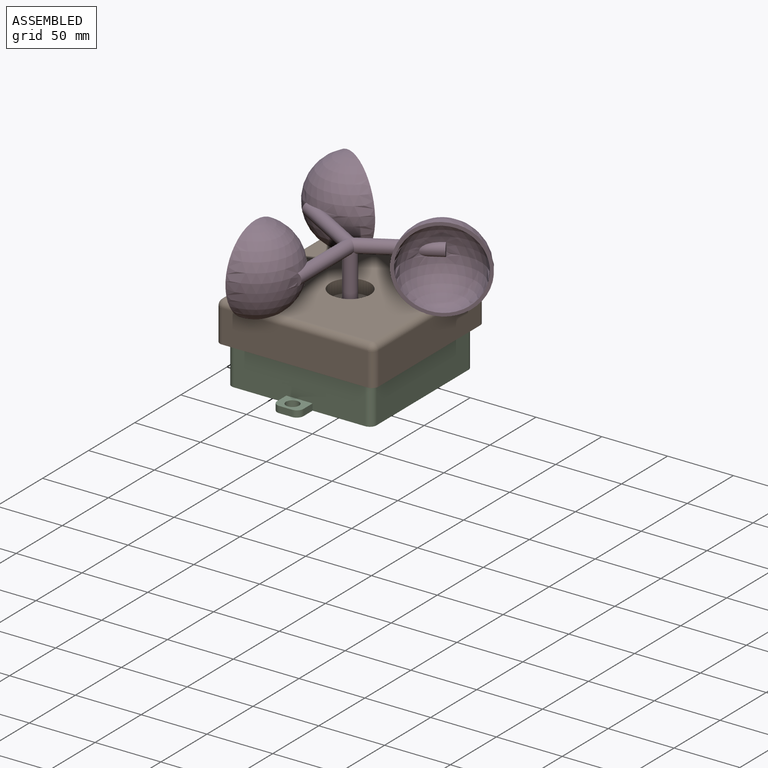
[diagram: assembled view]
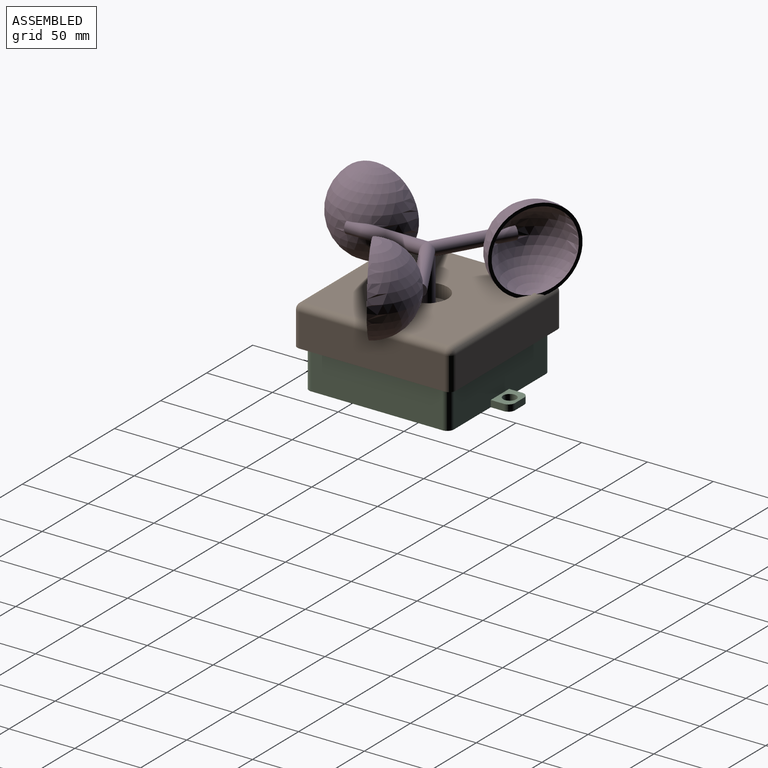
[diagram: assembled view, second angle]
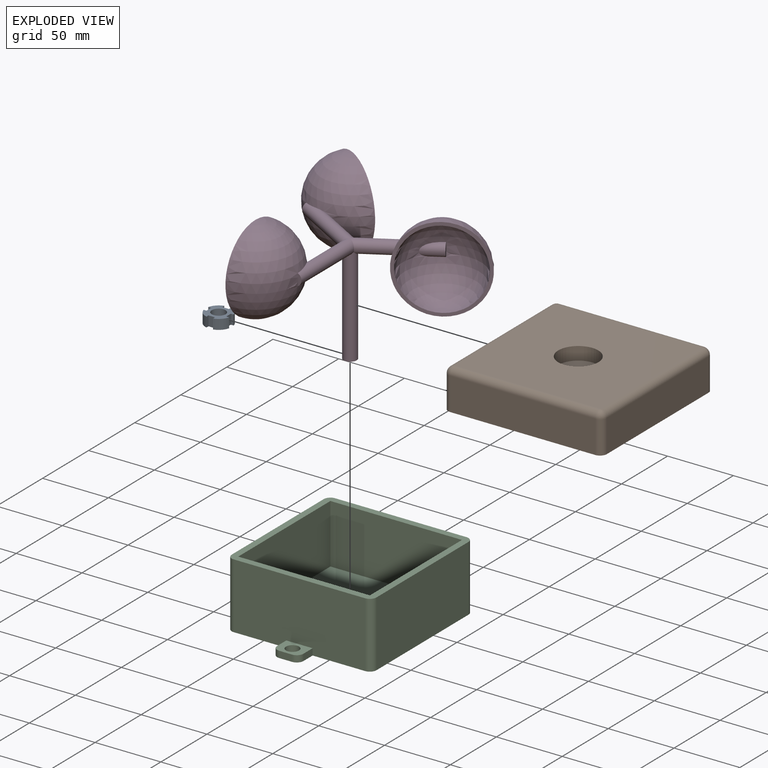
[diagram: exploded view]
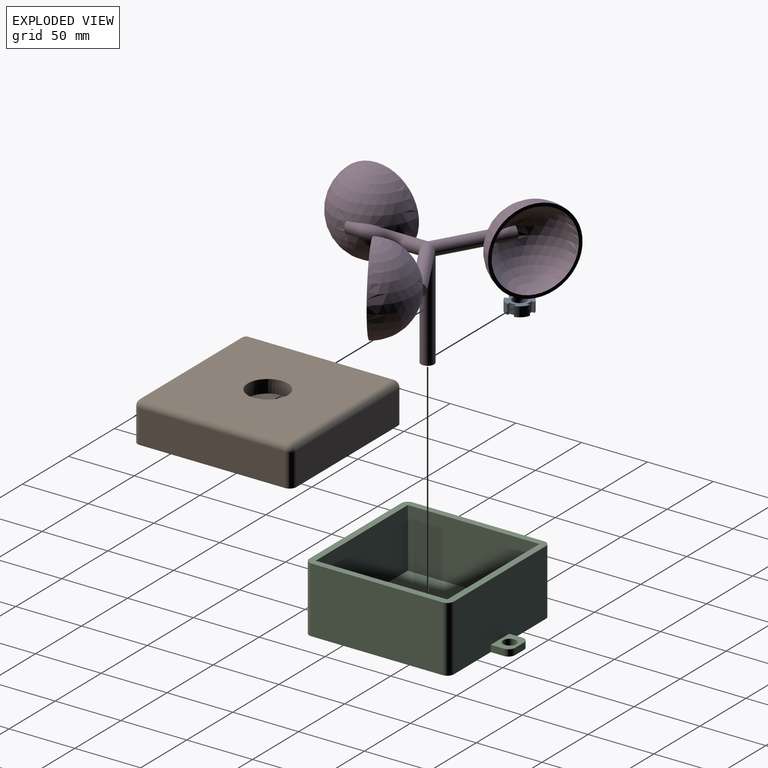
[diagram: exploded view, second angle]
ASSEMBLY  parts=4 mates=2
PART A: 20 faces, bbox 19.4x19.4x7.5 mm
  f0: cylinder r=10mm len=7.5mm, axis (0,0,-1), area 79.9mm2, adj f4,f5,f10,f17
  f1: cylinder r=10mm len=7.5mm, axis (0,0,-1), area 79.9mm2, adj f4,f5,f14,f19
  f2: cylinder r=10mm len=7.5mm, axis (0,0,-1), area 79.9mm2, adj f4,f5,f11,f16
  f3: cylinder r=10mm len=7.5mm, axis (0,0,-1), area 79.9mm2, adj f4,f5,f8,f13
  f4: plane 19.37x19.37mm, normal (0,0,1), area 179.7mm2, adj f0,f1,f2,f3,f6,f8,f9,f10
  f5: plane 19.37x19.37mm, normal (0,0,-1), area 266.3mm2, adj f0,f1,f2,f3,f8,f9,f10,f11
  f6: cylinder r=5.25mm len=10.5mm, axis (0,0,1), area 164.9mm2, adj f4,f7
  f7: plane 10.5x10.5mm, normal (0,0,1), area 86.6mm2, adj f6
  f8: plane 7.5x2.18mm, normal (0,1,0), area 16.4mm2, adj f3,f4,f5,f9
  f9: plane 7.5x5mm, normal (-1,0,0), area 37.5mm2, adj f4,f5,f8,f10
  f10: plane 7.5x2.18mm, normal (0,-1,0), area 16.4mm2, adj f0,f4,f5,f9
  f11: plane 7.5x2.18mm, normal (-1,0,0), area 16.4mm2, adj f2,f4,f5,f12
  f12: plane 7.5x5mm, normal (0,-1,0), area 37.5mm2, adj f4,f5,f11,f13
  f13: plane 7.5x2.18mm, normal (1,0,0), area 16.4mm2, adj f3,f4,f5,f12
  f14: plane 7.5x2.18mm, normal (0,-1,0), area 16.4mm2, adj f1,f4,f5,f15
  f15: plane 7.5x5mm, normal (1,0,0), area 37.5mm2, adj f4,f5,f14,f16
  f16: plane 7.5x2.18mm, normal (0,1,0), area 16.4mm2, adj f2,f4,f5,f15
  f17: plane 7.5x2.18mm, normal (1,0,0), area 16.4mm2, adj f0,f4,f5,f18
  f18: plane 7.5x5mm, normal (0,1,0), area 37.5mm2, adj f4,f5,f17,f19
  f19: plane 7.5x2.18mm, normal (-1,0,0), area 16.4mm2, adj f1,f4,f5,f18
PART B: 32 faces, bbox 120.5x120.5x30 mm
  f0: plane 100.34x20mm, normal (0,-1,0), area 2006.8mm2, adj f9,f11,f16,f19
  f1: plane 100.34x20mm, normal (-1,0,0), area 2006.8mm2, adj f9,f11,f16,f17
  f2: plane 100.34x20mm, normal (0,1,0), area 2006.8mm2, adj f9,f11,f17,f18
  f3: plane 100.34x20mm, normal (1,0,0), area 2006.8mm2, adj f9,f11,f18,f19
  f4: plane 110.34x24.92mm, normal (1,0,0), area 2749.7mm2, adj f9,f12,f15,f20
  f5: plane 110.34x24.92mm, normal (0,1,0), area 2749.7mm2, adj f9,f12,f13,f23
  f6: plane 110.34x24.92mm, normal (-1,0,0), area 2749.7mm2, adj f9,f13,f14,f27
  f7: plane 110.34x24.92mm, normal (0,-1,0), area 2749.7mm2, adj f9,f14,f15,f24
  f8: plane 110.34x110.34mm, normal (0,0,1), area 11444.3mm2, adj f10,f20,f23,f24,f27
  f9: plane 120.5x120.5mm, normal (0,0,-1), area 2310mm2, adj f0,f1,f2,f3,f4,f5,f6,f7
  f10: cylinder r=15.25mm len=30.5mm, axis (0,0,1), area 958.2mm2, adj f8,f28
  f11: plane 110.5x110.5mm, normal (0,0,-1), area 10931.5mm2, adj f0,f1,f2,f3,f16,f17,f18,f19
  f12: cylinder r=5.08mm len=24.92mm, axis (0,0,1), area 198.9mm2, adj f4,f5,f9,f21
  f13: cylinder r=5.08mm len=24.92mm, axis (0,0,-1), area 198.9mm2, adj f5,f6,f9,f25
  f14: cylinder r=5.08mm len=24.92mm, axis (0,0,1), area 198.9mm2, adj f6,f7,f9,f26
  f15: cylinder r=5.08mm len=24.92mm, axis (0,0,-1), area 198.9mm2, adj f4,f7,f9,f22
  f16: cylinder r=5.08mm len=20mm, axis (0,0,-1), area 159.6mm2, adj f0,f1,f9,f11
  f17: cylinder r=5.08mm len=20mm, axis (0,0,1), area 159.6mm2, adj f1,f2,f9,f11
  f18: cylinder r=5.08mm len=20mm, axis (0,0,-1), area 159.6mm2, adj f2,f3,f9,f11
  f19: cylinder r=5.08mm len=20mm, axis (0,0,1), area 159.6mm2, adj f0,f3,f9,f11
  f20: cylinder r=5.08mm len=110.34mm, axis (0,-1,0), area 880.5mm2, adj f4,f8,f21,f22
  f21: sphere r=5.08mm, area 40.5mm2, adj f12,f20,f23
  f22: sphere r=5.08mm, area 40.5mm2, adj f15,f20,f24
  f23: cylinder r=5.08mm len=110.34mm, axis (1,0,0), area 880.5mm2, adj f5,f8,f21,f25
  f24: cylinder r=5.08mm len=110.34mm, axis (-1,0,0), area 880.5mm2, adj f7,f8,f22,f26
  f25: sphere r=5.08mm, area 40.5mm2, adj f13,f23,f27
  f26: sphere r=5.08mm, area 40.5mm2, adj f14,f24,f27
  f27: cylinder r=5.08mm len=110.34mm, axis (0,1,0), area 880.5mm2, adj f6,f8,f25,f26
  f28: plane 30.5x30.5mm, normal (0,0,1), area 635.6mm2, adj f10,f30
  f29: cylinder r=20mm len=40mm, axis (0,0,1), area 314.2mm2, adj f11,f31
  f30: cylinder r=5.5mm len=11mm, axis (0,0,1), area 86.4mm2, adj f28,f31
  f31: plane 40x40mm, normal (0,0,-1), area 1161.6mm2, adj f29,f30
PART C: 29 faces, bbox 50x140x110 mm
  f0: plane 100x45mm, normal (0,1,0), area 4500mm2, adj f2,f3,f9,f10
  f1: plane 100x45mm, normal (0,-1,0), area 4500mm2, adj f2,f3,f9,f10
  f2: plane 100x45mm, normal (0,0,-1), area 4500mm2, adj f0,f1,f9,f10
  f3: plane 100x45mm, normal (0,0,1), area 4500mm2, adj f0,f1,f9,f10
  f4: plane 99.84x50mm, normal (0,0,1), area 4992mm2, adj f8,f9,f21,f24
  f5: plane 99.84x50mm, normal (0,-1,0), area 4892mm2, adj f8,f9,f16,f17,f18,f21,f22
  f6: plane 99.84x50mm, normal (0,0,-1), area 4992mm2, adj f8,f9,f22,f23
  f7: plane 99.84x50mm, normal (0,1,0), area 4892mm2, adj f8,f9,f13,f14,f15,f23,f24
  f8: plane 140x110mm, normal (1,0,0), area 12498.6mm2, adj f4,f5,f6,f7,f11,f12,f14,f15
  f9: plane 110x110mm, normal (-1,0,0), area 2077.8mm2, adj f0,f1,f2,f3,f4,f5,f6,f7
  f10: plane 100x100mm, normal (-1,0,0), area 10000mm2, adj f0,f1,f2,f3
  f11: cylinder r=5mm len=10mm, axis (1,0,0), area 157.1mm2, adj f8,f13
  f12: plane 9.84x5mm, normal (0,1,0), area 49.2mm2, adj f8,f13,f25,f26
  f13: plane 20x15mm, normal (-1,0,0), area 210.4mm2, adj f7,f11,f12,f14,f15,f25,f26
  f14: plane 9.92x5mm, normal (0,0,-1), area 49.6mm2, adj f7,f8,f13,f26
  f15: plane 9.92x5mm, normal (0,0,1), area 49.6mm2, adj f7,f8,f13,f25
  f16: plane 9.92x5mm, normal (0,0,1), area 49.6mm2, adj f5,f8,f18,f27
  f17: plane 9.92x5mm, normal (0,0,-1), area 49.6mm2, adj f5,f8,f18,f28
  f18: plane 20x15mm, normal (-1,0,0), area 210.4mm2, adj f5,f16,f17,f19,f20,f27,f28
  f19: plane 9.84x5mm, normal (0,-1,0), area 49.2mm2, adj f8,f18,f27,f28
  f20: cylinder r=5mm len=10mm, axis (1,0,0), area 157.1mm2, adj f8,f18
  f21: cylinder r=5.08mm len=50mm, axis (1,0,0), area 399mm2, adj f4,f5,f8,f9
  f22: cylinder r=5.08mm len=50mm, axis (-1,0,0), area 399mm2, adj f5,f6,f8,f9
  f23: cylinder r=5.08mm len=50mm, axis (1,0,0), area 399mm2, adj f6,f7,f8,f9
  f24: cylinder r=5.08mm len=50mm, axis (-1,0,0), area 399mm2, adj f4,f7,f8,f9
  f25: cylinder r=5.08mm len=5.08mm, axis (-1,0,0), area 39.9mm2, adj f8,f12,f13,f15
  f26: cylinder r=5.08mm len=5.08mm, axis (1,0,0), area 39.9mm2, adj f8,f12,f13,f14
  f27: cylinder r=5.08mm len=5.08mm, axis (1,0,0), area 39.9mm2, adj f8,f16,f18,f19
  f28: cylinder r=5.08mm len=5.08mm, axis (-1,0,0), area 39.9mm2, adj f8,f17,f18,f19
PART D: 23 faces, bbox 164.6x164.7x110.1 mm
  f0: cylinder r=5mm len=56.96mm, axis (-0.87,-0.5,0), area 1485.5mm2, adj f1,f2,f4,f9,f10
  f1: cylinder r=5mm len=75.07mm, axis (0,0,-1), area 2307.1mm2, adj f0,f3,f9,f10
  f2: plane 8.99x2.44mm, normal (0.87,0.5,0), area 16.2mm2, adj f0,f4
  f3: plane 10x10mm, normal (0,0,-1), area 78.5mm2, adj f1
  f4: sphere r=32.5mm, area 6437.4mm2, adj f0,f2,f6
  f5: sphere r=30mm, area 5504.7mm2, adj f6,f7,f8
  f6: plane 65x56.29mm, normal (0.5,-0.87,0), area 490.9mm2, adj f4,f5
  f7: plane 9.97x4.33mm, normal (0.87,0.5,0), area 37.9mm2, adj f5,f8
  f8: cylinder r=5mm len=16.66mm, axis (-0.87,-0.5,0), area 188.8mm2, adj f5,f7
  f9: cylinder r=5mm len=56.96mm, axis (0.87,-0.5,0), area 1485.5mm2, adj f0,f1,f10,f11,f12
  f10: cylinder r=5mm len=60mm, axis (0,1,0), area 1485.5mm2, adj f0,f1,f9,f17,f18
  f11: plane 8.99x2.44mm, normal (-0.87,0.5,0), area 16.2mm2, adj f9,f12
  f12: sphere r=32.5mm, area 6437.4mm2, adj f9,f11,f14
  f13: sphere r=30mm, area 5504.7mm2, adj f14,f15,f16
  f14: plane 65x56.29mm, normal (0.5,0.87,0), area 490.9mm2, adj f12,f13
  f15: plane 9.97x4.33mm, normal (-0.87,0.5,0), area 37.9mm2, adj f13,f16
  f16: cylinder r=5mm len=16.66mm, axis (0.87,-0.5,0), area 188.8mm2, adj f13,f15
  f17: plane 8.99x2.81mm, normal (0,-1,0), area 16.2mm2, adj f10,f18
  f18: sphere r=32.5mm, area 6437.4mm2, adj f10,f17,f20
  f19: sphere r=30mm, area 5504.7mm2, adj f20,f21,f22
  f20: plane 65x65mm, normal (-1,0,0), area 490.9mm2, adj f18,f19
  f21: plane 9.97x5mm, normal (0,-1,0), area 37.9mm2, adj f19,f22
  f22: cylinder r=5mm len=16.59mm, axis (0,1,0), area 188.8mm2, adj f19,f21
PLACE A t=(32.35,-119.34,30.89)mm
PLACE B t=(32.35,-119.34,51.15)mm
PLACE C rot(axis=(0,1,0),90deg) t=(32.35,-119.34,71.15)mm
PLACE D t=(32.35,-119.34,33.39)mm
MATE fastened B.f30 <-> C.f9  axis (0,0,-1) through (32.35,-119.34,71.15)mm
MATE fastened A.f6 <-> D.f1  axis (0,0,1) through (32.35,-119.34,33.39)mm
